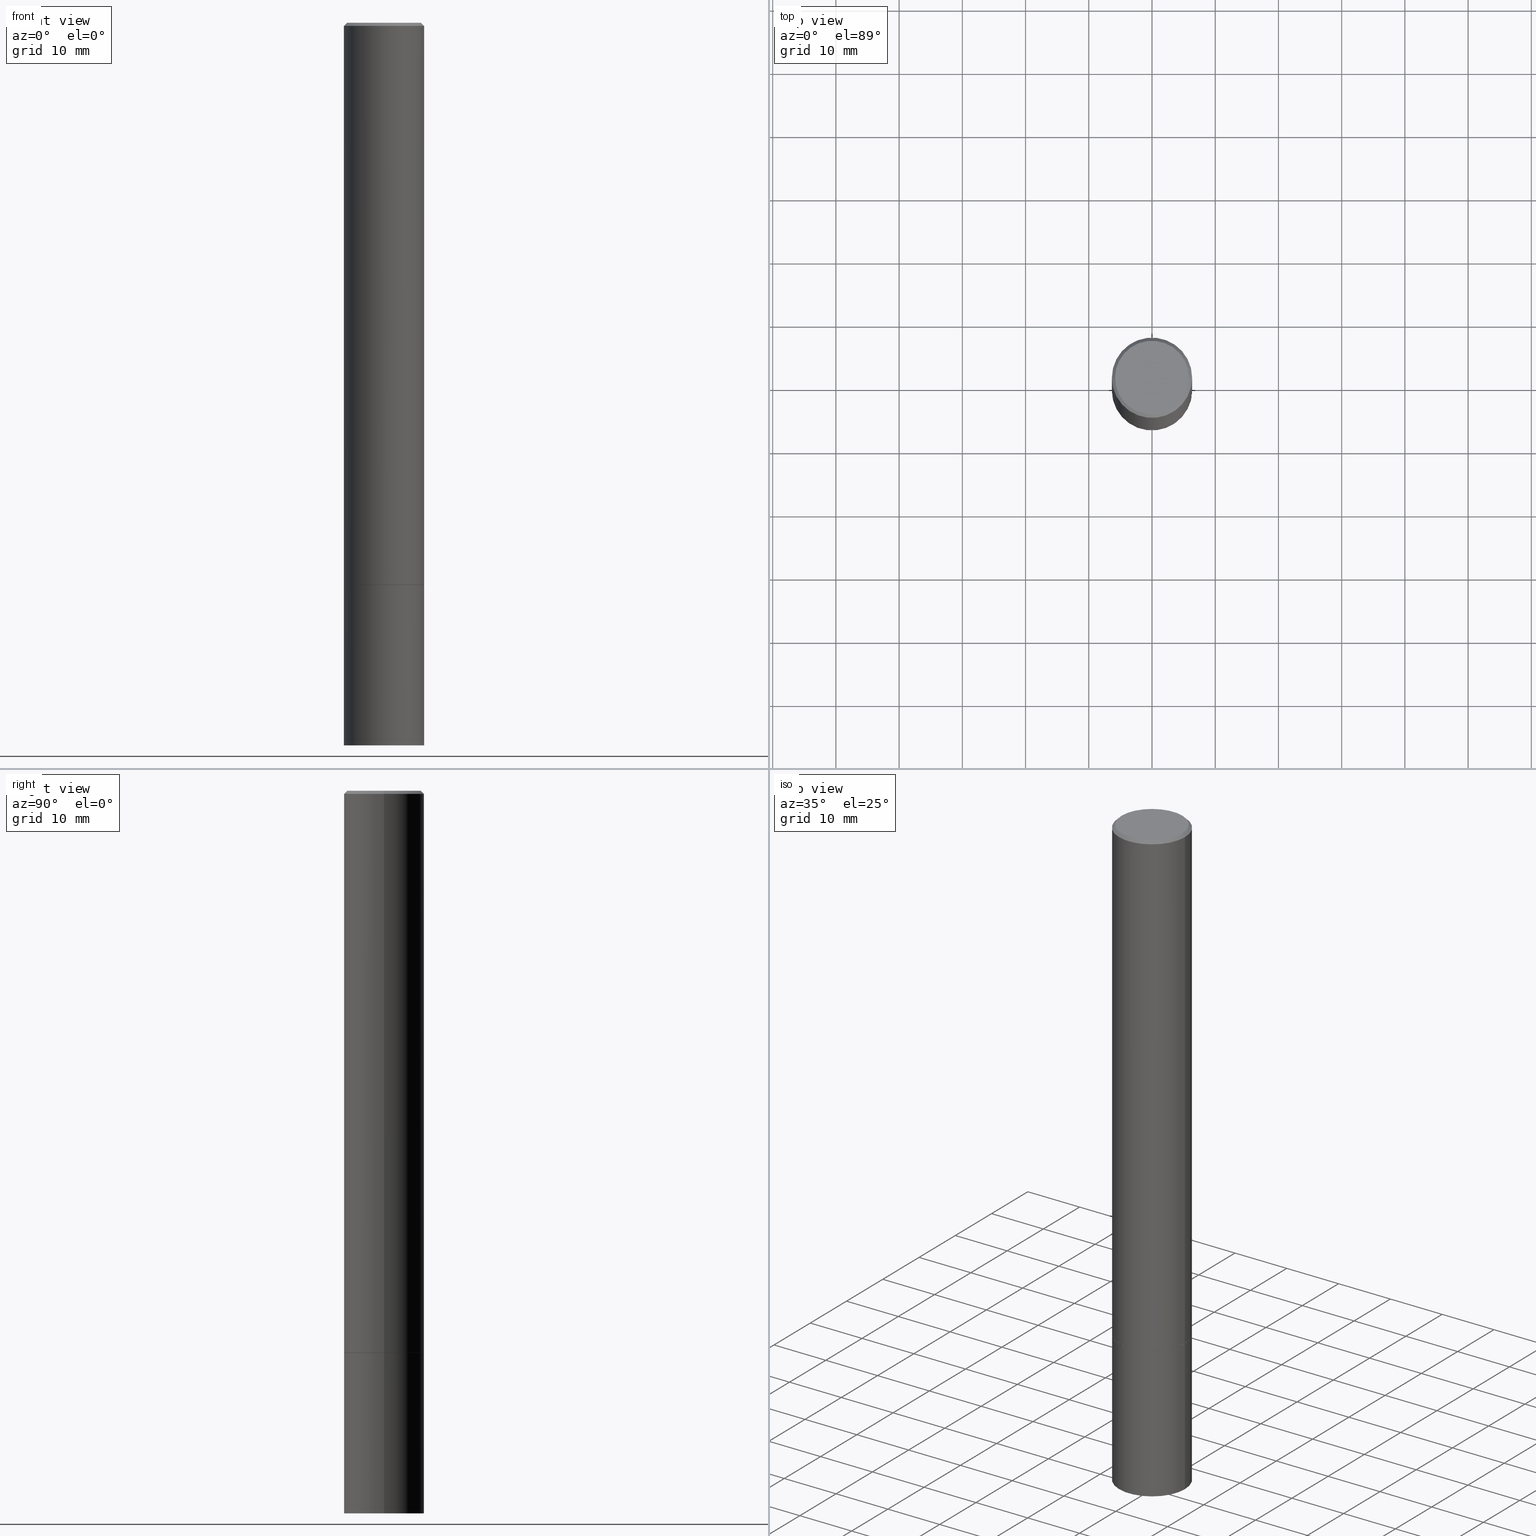
[diagram: canonical four-view strip — front | top / right | iso, engineering-drawing reading convention]
A machine part, canonical four-view strip (front | top / right | iso — engineering-drawing reading convention). The complete STEP part file that produces these views, byte-faithful:
ISO-10303-21;
HEADER;
FILE_DESCRIPTION (( 'STEP AP203' ),
    '1' );
FILE_NAME ('32265.STEP',
    '2024-02-27T14:52:53',
    ( '' ),
    ( '' ),
    'SwSTEP 2.0',
    'SolidWorks 2023',
    '' );
FILE_SCHEMA (( 'CONFIG_CONTROL_DESIGN' ));
ENDSEC;

DATA;
#1 = DIRECTION ( 'NONE',  ( 1.000000000000000000, -6.982962677686262766E-15, 0.000000000000000000 ) ) ;
#2 = VECTOR ( 'NONE', #349, 39.37007874015748143 ) ;
#3 = PRODUCT_DEFINITION ( 'UNKNOWN', '', #80, #163 ) ;
#4 = CARTESIAN_POINT ( 'NONE',  ( -0.2500000000000000555, -4.366904576294259619E-15, -3.499000000000000554 ) ) ;
#5 = EDGE_LOOP ( 'NONE', ( #111, #302, #224, #300 ) ) ;
#6 = DIRECTION ( 'NONE',  ( 1.000000000000000000, -6.982962677686262766E-15, 0.000000000000000000 ) ) ;
#7 = CYLINDRICAL_SURFACE ( 'NONE', #318, 0.2499999999999998057 ) ;
#8 = FACE_OUTER_BOUND ( 'NONE', #5, .T. ) ;
#9 = DIRECTION ( 'NONE',  ( 1.000000000000000000, -6.982962677686270655E-15, 0.000000000000000000 ) ) ;
#10 = PERSON_AND_ORGANIZATION ( #312, #361 ) ;
#11 = CC_DESIGN_APPROVAL ( #19, ( #80 ) ) ;
#12 = COORDINATED_UNIVERSAL_TIME_OFFSET ( 5, 0, .BEHIND. ) ;
#13 = EDGE_CURVE ( 'NONE', #35, #161, #264, .T. ) ;
#14 = DIRECTION ( 'NONE',  ( 1.000000000000000000, 0.000000000000000000, 0.000000000000000000 ) ) ;
#15 = CYLINDRICAL_SURFACE ( 'NONE', #129, 0.2500000000000000000 ) ;
#16 = PERSON_AND_ORGANIZATION_ROLE ( 'creator' ) ;
#17 = CARTESIAN_POINT ( 'NONE',  ( 1.745740669421676527E-15, 0.2499999999999842903, -4.500000000000000888 ) ) ;
#18 = APPLICATION_PROTOCOL_DEFINITION ( 'international standard', 'config_control_design', 1994, #199 ) ;
#19 = APPROVAL ( #240, 'UNSPECIFIED' ) ;
#20 = VECTOR ( 'NONE', #50, 39.37007874015748143 ) ;
#21 = CARTESIAN_POINT ( 'NONE',  ( 8.559140821647978089E-29, -1.222018468595101092E-14, -3.500000000000000444 ) ) ;
#22 = DIRECTION ( 'NONE',  ( 2.438088387897960049E-29, -3.491481338843145188E-15, -1.000000000000000000 ) ) ;
#23 = ORIENTED_EDGE ( 'NONE', *, *, #193, .T. ) ;
#24 = CARTESIAN_POINT ( 'NONE',  ( 8.559140821647978089E-29, -1.222018468595101092E-14, -3.500000000000000444 ) ) ;
#25 = VERTEX_POINT ( 'NONE', #100 ) ;
#26 = CIRCLE ( 'NONE', #276, 0.2489999999999999991 ) ;
#27 = AXIS2_PLACEMENT_3D ( 'NONE', #108, #329, #110 ) ;
#28 = EDGE_CURVE ( 'NONE', #271, #192, #352, .T. ) ;
#29 = CARTESIAN_POINT ( 'NONE',  ( -0.2299999999999995381, 1.640996229256269364E-15, 4.268512490089056766E-18 ) ) ;
#30 = EDGE_LOOP ( 'NONE', ( #173, #335, #249, #365 ) ) ;
#31 = DIRECTION ( 'NONE',  ( -2.445468806185136597E-29, 3.491481338843145583E-15, 1.000000000000000000 ) ) ;
#32 = CC_DESIGN_APPROVAL ( #210, ( #3 ) ) ;
#33 = DIRECTION ( 'NONE',  ( -1.000000000000000000, 6.982962677686265922E-15, -4.876176775795935793E-29 ) ) ;
#34 = VECTOR ( 'NONE', #157, 39.37007874015748143 ) ;
#35 = VERTEX_POINT ( 'NONE', #123 ) ;
#36 = PERSON_AND_ORGANIZATION ( #312, #361 ) ;
#37 = PERSON_AND_ORGANIZATION ( #312, #361 ) ;
#38 = AXIS2_PLACEMENT_3D ( 'NONE', #105, #22, #270 ) ;
#39 = CIRCLE ( 'NONE', #285, 0.2500000000000000000 ) ;
#40 = COORDINATED_UNIVERSAL_TIME_OFFSET ( 5, 0, .BEHIND. ) ;
#41 = CARTESIAN_POINT ( 'NONE',  ( 0.2489999999999999991, -1.395894239269489158E-14, -3.500000000000000444 ) ) ;
#42 = ORIENTED_EDGE ( 'NONE', *, *, #172, .F. ) ;
#43 = PERSON_AND_ORGANIZATION ( #312, #361 ) ;
#44 = DIRECTION ( 'NONE',  ( 1.000000000000000000, -6.982962677686266711E-15, 4.876225828469318410E-29 ) ) ;
#45 = AXIS2_PLACEMENT_3D ( 'NONE', #291, #208, #322 ) ;
#46 = CIRCLE ( 'NONE', #354, 0.2499999999999995837 ) ;
#47 = EDGE_LOOP ( 'NONE', ( #67, #363 ) ) ;
#48 = CARTESIAN_POINT ( 'NONE',  ( -1.043851414335219820E-46, 1.490343170380447200E-32, 4.268512490100411279E-18 ) ) ;
#49 = ORIENTED_EDGE ( 'NONE', *, *, #226, .T. ) ;
#50 = DIRECTION ( 'NONE',  ( 0.7071067811866199593, -2.468850131083015945E-15, 0.7071067811864750752 ) ) ;
#51 = CARTESIAN_POINT ( 'NONE',  ( 0.2500000000000000000, -1.745740669421566678E-15, 1.219044193948983948E-29 ) ) ;
#52 = LINE ( 'NONE', #241, #97 ) ;
#53 = ORIENTED_EDGE ( 'NONE', *, *, #158, .F. ) ;
#54 = AXIS2_PLACEMENT_3D ( 'NONE', #168, #140, #343 ) ;
#55 = CARTESIAN_POINT ( 'NONE',  ( 8.556695352841794728E-29, -1.221669320461216791E-14, -3.499000000000000554 ) ) ;
#56 = EDGE_LOOP ( 'NONE', ( #159, #86, #251, #232 ) ) ;
#57 = VERTEX_POINT ( 'NONE', #347 ) ;
#58 = DIRECTION ( 'NONE',  ( 1.000000000000000000, -6.982962677686270655E-15, 0.000000000000000000 ) ) ;
#59 = AXIS2_PLACEMENT_3D ( 'NONE', #48, #297, #188 ) ;
#60 = EDGE_LOOP ( 'NONE', ( #332, #167, #49, #279 ) ) ;
#61 = ADVANCED_FACE ( 'NONE', ( #321 ), #284, .T. ) ;
#62 = CARTESIAN_POINT ( 'NONE',  ( 0.2499999999999998057, -1.745740669421565297E-15, 1.219044193948982967E-29 ) ) ;
#63 = MANIFOLD_SOLID_BREP ( 'Body-Move/Copy2[2]', #314 ) ;
#64 = DIRECTION ( 'NONE',  ( 2.445468806185136597E-29, -3.491481338843145583E-15, -1.000000000000000000 ) ) ;
#65 = DIRECTION ( 'NONE',  ( -2.445468806185136597E-29, 3.491481338843145583E-15, 1.000000000000000000 ) ) ;
#66 = CONICAL_SURFACE ( 'NONE', #54, 0.2489999999999999991, 0.7853981633975507526 ) ;
#67 = ORIENTED_EDGE ( 'NONE', *, *, #315, .T. ) ;
#68 = PERSON_AND_ORGANIZATION_ROLE ( 'classification_officer' ) ;
#69 = DIRECTION ( 'NONE',  ( 1.000000000000000000, -6.982962677686270655E-15, 0.000000000000000000 ) ) ;
#70 = ADVANCED_FACE ( 'NONE', ( #183 ), #15, .T. ) ;
#71 = CARTESIAN_POINT ( 'NONE',  ( -0.2500000000000000000, 1.776356839400250465E-15, -1.229733772563726445E-29 ) ) ;
#72 = CALENDAR_DATE ( 2024, 27, 2 ) ;
#73 = DIRECTION ( 'NONE',  ( -2.445468806185136877E-29, 3.491481338843145188E-15, 1.000000000000000000 ) ) ;
#74 = MANIFOLD_SOLID_BREP ( 'Body-Move/Copy2[1]', #306 ) ;
#75 = APPLICATION_CONTEXT ( 'configuration controlled 3d designs of mechanical parts and assemblies' ) ;
#76 = ORIENTED_EDGE ( 'NONE', *, *, #315, .F. ) ;
#77 = APPROVAL_DATE_TIME ( #155, #117 ) ;
#78 = DIRECTION ( 'NONE',  ( -2.445468806185136877E-29, 3.491481338843145188E-15, 1.000000000000000000 ) ) ;
#79 = DIRECTION ( 'NONE',  ( -0.7071067811866199593, 7.493145998870616062E-15, 0.7071067811864750752 ) ) ;
#80 = PRODUCT_DEFINITION_FORMATION_WITH_SPECIFIED_SOURCE ( 'ANY', '', #280, .NOT_KNOWN. ) ;
#81 = LINE ( 'NONE', #41, #20 ) ;
#82 = ADVANCED_FACE ( 'NONE', ( #243 ), #245, .T. ) ;
#83 = VERTEX_POINT ( 'NONE', #154 ) ;
#84 = FACE_OUTER_BOUND ( 'NONE', #178, .T. ) ;
#85 = LINE ( 'NONE', #364, #341 ) ;
#86 = ORIENTED_EDGE ( 'NONE', *, *, #236, .T. ) ;
#87 = AXIS2_PLACEMENT_3D ( 'NONE', #21, #31, #6 ) ;
#88 = CC_DESIGN_DATE_AND_TIME_ASSIGNMENT ( #124, #233, ( #3 ) ) ;
#89 = AXIS2_PLACEMENT_3D ( 'NONE', #215, #195, #303 ) ;
#90 = SECURITY_CLASSIFICATION ( '', '', #353 ) ;
#91 = ORIENTED_EDGE ( 'NONE', *, *, #307, .T. ) ;
#92 = ADVANCED_FACE ( 'NONE', ( #84 ), #160, .F. ) ;
#93 = FACE_OUTER_BOUND ( 'NONE', #56, .T. ) ;
#94 = ADVANCED_BREP_SHAPE_REPRESENTATION ( '32265', ( #74, #63, #342 ), #150 ) ;
#95 = CARTESIAN_POINT ( 'NONE',  ( 4.890937612370290675E-31, -6.982962677686316261E-17, -0.02000000000000007327 ) ) ;
#96 = ADVANCED_FACE ( 'NONE', ( #274 ), #333, .F. ) ;
#97 = VECTOR ( 'NONE', #358, 39.37007874015748143 ) ;
#98 = APPROVAL_ROLE ( '' ) ;
#99 = LINE ( 'NONE', #62, #156 ) ;
#100 = CARTESIAN_POINT ( 'NONE',  ( 0.2489999999999999991, -1.395894239269489158E-14, -3.500000000000000444 ) ) ;
#101 = COORDINATED_UNIVERSAL_TIME_OFFSET ( 5, 0, .BEHIND. ) ;
#102 = ORIENTED_EDGE ( 'NONE', *, *, #134, .T. ) ;
#103 = CONICAL_SURFACE ( 'NONE', #346, 0.2499999999999995837, 0.7853981633974479459 ) ;
#104 = PERSON_AND_ORGANIZATION_ROLE ( 'creator' ) ;
#105 = CARTESIAN_POINT ( 'NONE',  ( 1.606081415867837912E-15, 0.2299999999999995381, -8.009064516888716022E-16 ) ) ;
#106 = CALENDAR_DATE ( 2024, 27, 2 ) ;
#107 = ORIENTED_EDGE ( 'NONE', *, *, #186, .F. ) ;
#108 = CARTESIAN_POINT ( 'NONE',  ( 4.890937612370290675E-31, -6.982962677686316261E-17, -0.02000000000000007327 ) ) ;
#109 = EDGE_LOOP ( 'NONE', ( #91, #275, #76, #42 ) ) ;
#110 = DIRECTION ( 'NONE',  ( 1.000000000000000000, -6.982962677686266711E-15, 0.000000000000000000 ) ) ;
#111 = ORIENTED_EDGE ( 'NONE', *, *, #344, .T. ) ;
#112 = CARTESIAN_POINT ( 'NONE',  ( 1.100460962783311469E-28, -1.571166602479415690E-14, -4.500000000000000000 ) ) ;
#113 = CARTESIAN_POINT ( 'NONE',  ( -0.2499999999999998057, 1.776356839400249084E-15, -1.229733772563725465E-29 ) ) ;
#114 = DIRECTION ( 'NONE',  ( 1.000000000000000000, -6.982962677686265922E-15, 4.876176775795935793E-29 ) ) ;
#115 = VERTEX_POINT ( 'NONE', #29 ) ;
#116 = VECTOR ( 'NONE', #213, 39.37007874015748143 ) ;
#117 = APPROVAL ( #149, 'UNSPECIFIED' ) ;
#118 = AXIS2_PLACEMENT_3D ( 'NONE', #207, #147, #9 ) ;
#119 = AXIS2_PLACEMENT_3D ( 'NONE', #24, #299, #219 ) ;
#120 = PLANE ( 'NONE',  #237 ) ;
#121 = DIRECTION ( 'NONE',  ( -2.445468806185136597E-29, 3.491481338843145583E-15, 1.000000000000000000 ) ) ;
#122 = CARTESIAN_POINT ( 'NONE',  ( 0.000000000000000000, 0.000000000000000000, 0.000000000000000000 ) ) ;
#123 = CARTESIAN_POINT ( 'NONE',  ( -0.2500000000000000000, -1.218956851597233187E-14, -4.500000000000000000 ) ) ;
#124 = DATE_AND_TIME ( #72, #164 ) ;
#125 = LOCAL_TIME ( 9, 52, 53.00000000000000000, #40 ) ;
#126 = COORDINATED_UNIVERSAL_TIME_OFFSET ( 5, 0, .BEHIND. ) ;
#127 = ORIENTED_EDGE ( 'NONE', *, *, #206, .F. ) ;
#128 = EDGE_CURVE ( 'NONE', #255, #25, #26, .T. ) ;
#129 = AXIS2_PLACEMENT_3D ( 'NONE', #131, #137, #309 ) ;
#130 = AXIS2_PLACEMENT_3D ( 'NONE', #203, #316, #257 ) ;
#131 = CARTESIAN_POINT ( 'NONE',  ( 0.000000000000000000, 0.000000000000000000, 0.000000000000000000 ) ) ;
#132 = CARTESIAN_POINT ( 'NONE',  ( 0.2500000000000000000, -1.745740669421572357E-14, -4.500000000000000000 ) ) ;
#133 = EDGE_LOOP ( 'NONE', ( #53, #190, #242, #304 ) ) ;
#134 = EDGE_CURVE ( 'NONE', #83, #115, #292, .T. ) ;
#135 = LINE ( 'NONE', #359, #34 ) ;
#136 = ORIENTED_EDGE ( 'NONE', *, *, #144, .T. ) ;
#137 = DIRECTION ( 'NONE',  ( -2.445468806185136597E-29, 3.491481338843145583E-15, 1.000000000000000000 ) ) ;
#138 = AXIS2_PLACEMENT_3D ( 'NONE', #214, #239, #44 ) ;
#139 = CIRCLE ( 'NONE', #59, 0.2299999999999995381 ) ;
#140 = DIRECTION ( 'NONE',  ( -2.445468806185136597E-29, 3.491481338843145583E-15, 1.000000000000000000 ) ) ;
#141 = ORIENTED_EDGE ( 'NONE', *, *, #317, .T. ) ;
#142 = DIRECTION ( 'NONE',  ( -2.445468806185136597E-29, 3.491481338843145583E-15, 1.000000000000000000 ) ) ;
#143 = VECTOR ( 'NONE', #78, 39.37007874015748143 ) ;
#144 = EDGE_CURVE ( 'NONE', #255, #271, #85, .T. ) ;
#145 = CYLINDRICAL_SURFACE ( 'NONE', #130, 0.2499999999999998057 ) ;
#146 = CIRCLE ( 'NONE', #325, 0.2500000000000000000 ) ;
#147 = DIRECTION ( 'NONE',  ( -2.445468806185136597E-29, 3.491481338843145583E-15, 1.000000000000000000 ) ) ;
#148 = CALENDAR_DATE ( 2024, 27, 2 ) ;
#149 = APPROVAL_STATUS ( 'not_yet_approved' ) ;
#150 =( GEOMETRIC_REPRESENTATION_CONTEXT ( 3 ) GLOBAL_UNCERTAINTY_ASSIGNED_CONTEXT ( ( #272 ) ) GLOBAL_UNIT_ASSIGNED_CONTEXT ( ( #198, #319, #313 ) ) REPRESENTATION_CONTEXT ( 'NONE', 'WORKASPACE' ) );
#151 = ADVANCED_FACE ( 'NONE', ( #248 ), #362, .T. ) ;
#152 = VERTEX_POINT ( 'NONE', #189 ) ;
#153 = APPROVAL_DATE_TIME ( #320, #210 ) ;
#154 = CARTESIAN_POINT ( 'NONE',  ( 0.2299999999999995381, -1.681434332853596053E-15, 4.268512490111905999E-18 ) ) ;
#155 = DATE_AND_TIME ( #356, #225 ) ;
#156 = VECTOR ( 'NONE', #73, 39.37007874015748143 ) ;
#157 = DIRECTION ( 'NONE',  ( -0.7071067811865472397, 2.468850131082253905E-15, -0.7071067811865477948 ) ) ;
#158 = EDGE_CURVE ( 'NONE', #271, #165, #331, .T. ) ;
#159 = ORIENTED_EDGE ( 'NONE', *, *, #13, .F. ) ;
#160 = PLANE ( 'NONE',  #38 ) ;
#161 = VERTEX_POINT ( 'NONE', #162 ) ;
#162 = CARTESIAN_POINT ( 'NONE',  ( -0.2500000000000000000, -1.218956851597233187E-14, -3.500000000000000444 ) ) ;
#163 = DESIGN_CONTEXT ( 'detailed design', #199, 'design' ) ;
#164 = LOCAL_TIME ( 9, 52, 53.00000000000000000, #185 ) ;
#165 = VERTEX_POINT ( 'NONE', #187 ) ;
#166 = CC_DESIGN_PERSON_AND_ORGANIZATION_ASSIGNMENT ( #234, #68, ( #90 ) ) ;
#167 = ORIENTED_EDGE ( 'NONE', *, *, #206, .T. ) ;
#168 = CARTESIAN_POINT ( 'NONE',  ( 8.559140821647978089E-29, -1.222018468595101092E-14, -3.500000000000000444 ) ) ;
#169 = VERTEX_POINT ( 'NONE', #132 ) ;
#170 = LOCAL_TIME ( 9, 52, 53.00000000000000000, #101 ) ;
#171 = CARTESIAN_POINT ( 'NONE',  ( 1.745740669421652072E-15, 0.2499999999999877598, -3.500000000000001332 ) ) ;
#172 = EDGE_CURVE ( 'NONE', #169, #57, #334, .T. ) ;
#173 = ORIENTED_EDGE ( 'NONE', *, *, #144, .F. ) ;
#174 = CARTESIAN_POINT ( 'NONE',  ( 8.559140821647978089E-29, -1.222018468595101092E-14, -3.500000000000000444 ) ) ;
#175 = APPROVAL_DATE_TIME ( #326, #19 ) ;
#176 = CARTESIAN_POINT ( 'NONE',  ( 0.000000000000000000, 0.000000000000000000, 0.000000000000000000 ) ) ;
#177 = DATE_TIME_ROLE ( 'classification_date' ) ;
#178 = EDGE_LOOP ( 'NONE', ( #23, #102 ) ) ;
#179 = CC_DESIGN_DATE_AND_TIME_ASSIGNMENT ( #290, #177, ( #90 ) ) ;
#180 = AXIS2_PLACEMENT_3D ( 'NONE', #17, #355, #268 ) ;
#181 = APPROVAL_PERSON_ORGANIZATION ( #10, #117, #230 ) ;
#182 = CC_DESIGN_SECURITY_CLASSIFICATION ( #90, ( #80 ) ) ;
#183 = FACE_OUTER_BOUND ( 'NONE', #109, .T. ) ;
#184 = DIRECTION ( 'NONE',  ( -2.445468806185136597E-29, 3.491481338843145583E-15, 1.000000000000000000 ) ) ;
#185 = COORDINATED_UNIVERSAL_TIME_OFFSET ( 5, 0, .BEHIND. ) ;
#186 = EDGE_CURVE ( 'NONE', #25, #255, #267, .T. ) ;
#187 = CARTESIAN_POINT ( 'NONE',  ( -0.2499999999999995837, 1.675911042644700618E-15, -0.02000000000000007327 ) ) ;
#188 = DIRECTION ( 'NONE',  ( 1.000000000000000000, -6.982962677686266711E-15, 4.876225828469318410E-29 ) ) ;
#189 = CARTESIAN_POINT ( 'NONE',  ( 0.2499999999999995837, -1.784954126219743033E-15, -0.02000000000000007327 ) ) ;
#190 = ORIENTED_EDGE ( 'NONE', *, *, #28, .T. ) ;
#191 = DIRECTION ( 'NONE',  ( 1.000000000000000000, -6.982962677686266711E-15, 0.000000000000000000 ) ) ;
#192 = VERTEX_POINT ( 'NONE', #301 ) ;
#193 = EDGE_CURVE ( 'NONE', #115, #83, #139, .T. ) ;
#194 = DIRECTION ( 'NONE',  ( -2.445468806185136597E-29, 3.491481338843145583E-15, 1.000000000000000000 ) ) ;
#195 = DIRECTION ( 'NONE',  ( 2.445468806185136597E-29, -3.491481338843145583E-15, -1.000000000000000000 ) ) ;
#196 = EDGE_LOOP ( 'NONE', ( #107, #220 ) ) ;
#197 = DIRECTION ( 'NONE',  ( 1.000000000000000000, -6.982962677686266711E-15, 0.000000000000000000 ) ) ;
#198 =( CONVERSION_BASED_UNIT ( 'INCH', #286 ) LENGTH_UNIT ( ) NAMED_UNIT ( #296 ) );
#199 = APPLICATION_CONTEXT ( 'configuration controlled 3d designs of mechanical parts and assemblies' ) ;
#200 = APPROVAL_PERSON_ORGANIZATION ( #43, #210, #204 ) ;
#201 = EDGE_CURVE ( 'NONE', #115, #165, #135, .T. ) ;
#202 = DIRECTION ( 'NONE',  ( 1.000000000000000000, -6.982962677686266711E-15, 4.876176775795935793E-29 ) ) ;
#203 = CARTESIAN_POINT ( 'NONE',  ( 0.000000000000000000, 0.000000000000000000, 0.000000000000000000 ) ) ;
#204 = APPROVAL_ROLE ( '' ) ;
#205 = CYLINDRICAL_SURFACE ( 'NONE', #258, 0.2500000000000000000 ) ;
#206 = EDGE_CURVE ( 'NONE', #83, #152, #52, .T. ) ;
#207 = CARTESIAN_POINT ( 'NONE',  ( 8.556695352841794728E-29, -1.221669320461216791E-14, -3.499000000000000554 ) ) ;
#208 = DIRECTION ( 'NONE',  ( -2.445468806185136597E-29, 3.491481338843145583E-15, 1.000000000000000000 ) ) ;
#209 = CC_DESIGN_APPROVAL ( #117, ( #90 ) ) ;
#210 = APPROVAL ( #323, 'UNSPECIFIED' ) ;
#211 = DIRECTION ( 'NONE',  ( -2.445468806185136597E-29, 3.491481338843145583E-15, 1.000000000000000000 ) ) ;
#212 = PERSON_AND_ORGANIZATION ( #312, #361 ) ;
#213 = DIRECTION ( 'NONE',  ( -2.445468806185136877E-29, 3.491481338843145188E-15, 1.000000000000000000 ) ) ;
#214 = CARTESIAN_POINT ( 'NONE',  ( -1.043851414335219820E-46, 1.490343170380447200E-32, 4.268512490100411279E-18 ) ) ;
#215 = CARTESIAN_POINT ( 'NONE',  ( 4.890937612370290675E-31, -6.982962677686316261E-17, -0.02000000000000007327 ) ) ;
#216 = CC_DESIGN_PERSON_AND_ORGANIZATION_ASSIGNMENT ( #212, #288, ( #80 ) ) ;
#217 = EDGE_LOOP ( 'NONE', ( #330, #253 ) ) ;
#218 = FACE_OUTER_BOUND ( 'NONE', #133, .T. ) ;
#219 = DIRECTION ( 'NONE',  ( 1.000000000000000000, -6.982962677686266711E-15, 0.000000000000000000 ) ) ;
#220 = ORIENTED_EDGE ( 'NONE', *, *, #128, .F. ) ;
#221 = AXIS2_PLACEMENT_3D ( 'NONE', #55, #228, #58 ) ;
#222 = CARTESIAN_POINT ( 'NONE',  ( 4.890937612370290675E-31, -6.982962677686316261E-17, -0.02000000000000007327 ) ) ;
#223 = CC_DESIGN_PERSON_AND_ORGANIZATION_ASSIGNMENT ( #262, #16, ( #3 ) ) ;
#224 = ORIENTED_EDGE ( 'NONE', *, *, #226, .F. ) ;
#225 = LOCAL_TIME ( 9, 52, 53.00000000000000000, #12 ) ;
#226 = EDGE_CURVE ( 'NONE', #152, #165, #308, .T. ) ;
#227 = DIRECTION ( 'NONE',  ( 1.000000000000000000, -6.982962677686266711E-15, 4.876176775795935793E-29 ) ) ;
#228 = DIRECTION ( 'NONE',  ( -2.445468806185136597E-29, 3.491481338843145583E-15, 1.000000000000000000 ) ) ;
#229 = CARTESIAN_POINT ( 'NONE',  ( 1.100460962783311469E-28, -1.571166602479415690E-14, -4.500000000000000000 ) ) ;
#230 = APPROVAL_ROLE ( '' ) ;
#231 = EDGE_CURVE ( 'NONE', #25, #192, #81, .T. ) ;
#232 = ORIENTED_EDGE ( 'NONE', *, *, #340, .F. ) ;
#233 = DATE_TIME_ROLE ( 'creation_date' ) ;
#234 = PERSON_AND_ORGANIZATION ( #312, #361 ) ;
#235 = PERSON_AND_ORGANIZATION ( #312, #361 ) ;
#236 = EDGE_CURVE ( 'NONE', #35, #169, #277, .T. ) ;
#237 = AXIS2_PLACEMENT_3D ( 'NONE', #171, #283, #33 ) ;
#238 = CARTESIAN_POINT ( 'NONE',  ( -0.2489999999999999991, -1.044563481956013985E-14, -3.500000000000000444 ) ) ;
#239 = DIRECTION ( 'NONE',  ( -2.445468806185136597E-29, 3.491481338843145583E-15, 1.000000000000000000 ) ) ;
#240 = APPROVAL_STATUS ( 'not_yet_approved' ) ;
#241 = CARTESIAN_POINT ( 'NONE',  ( 0.2499999999999995837, -1.784954126219743033E-15, -0.02000000000000007327 ) ) ;
#242 = ORIENTED_EDGE ( 'NONE', *, *, #256, .T. ) ;
#243 = FACE_OUTER_BOUND ( 'NONE', #60, .T. ) ;
#244 = ORIENTED_EDGE ( 'NONE', *, *, #186, .T. ) ;
#245 = CONICAL_SURFACE ( 'NONE', #89, 0.2499999999999995837, 0.7853981633974479459 ) ;
#246 = CC_DESIGN_PERSON_AND_ORGANIZATION_ASSIGNMENT ( #37, #260, ( #280 ) ) ;
#247 = CIRCLE ( 'NONE', #221, 0.2500000000000000000 ) ;
#248 = FACE_OUTER_BOUND ( 'NONE', #217, .T. ) ;
#249 = ORIENTED_EDGE ( 'NONE', *, *, #231, .T. ) ;
#250 = CARTESIAN_POINT ( 'NONE',  ( 8.559140821647978089E-29, -1.222018468595101092E-14, -3.500000000000000444 ) ) ;
#251 = ORIENTED_EDGE ( 'NONE', *, *, #172, .T. ) ;
#252 =( LENGTH_UNIT ( ) NAMED_UNIT ( * ) SI_UNIT ( $, .METRE. ) );
#253 = ORIENTED_EDGE ( 'NONE', *, *, #236, .F. ) ;
#254 = DIRECTION ( 'NONE',  ( -1.000000000000000000, 6.982962677686266711E-15, 0.000000000000000000 ) ) ;
#255 = VERTEX_POINT ( 'NONE', #238 ) ;
#256 = EDGE_CURVE ( 'NONE', #192, #152, #99, .T. ) ;
#257 = DIRECTION ( 'NONE',  ( 1.000000000000000000, -6.982962677686266711E-15, 4.876176775795935793E-29 ) ) ;
#258 = AXIS2_PLACEMENT_3D ( 'NONE', #176, #65, #202 ) ;
#259 = ORIENTED_EDGE ( 'NONE', *, *, #344, .F. ) ;
#260 = PERSON_AND_ORGANIZATION_ROLE ( 'design_owner' ) ;
#261 = FACE_OUTER_BOUND ( 'NONE', #47, .T. ) ;
#262 = PERSON_AND_ORGANIZATION ( #312, #361 ) ;
#263 = CC_DESIGN_PERSON_AND_ORGANIZATION_ASSIGNMENT ( #235, #104, ( #80 ) ) ;
#264 = LINE ( 'NONE', #71, #2 ) ;
#265 = DIRECTION ( 'NONE',  ( 0.000000000000000000, 0.000000000000000000, 1.000000000000000000 ) ) ;
#266 = CARTESIAN_POINT ( 'NONE',  ( 8.559140821647978089E-29, -1.222018468595101092E-14, -3.500000000000000444 ) ) ;
#267 = CIRCLE ( 'NONE', #119, 0.2489999999999999991 ) ;
#268 = DIRECTION ( 'NONE',  ( -1.000000000000000000, 6.982962677686265922E-15, -4.876176775795935793E-29 ) ) ;
#269 = EDGE_LOOP ( 'NONE', ( #244, #136, #259, #310 ) ) ;
#270 = DIRECTION ( 'NONE',  ( -1.000000000000000000, 6.982962677686265922E-15, -4.876176775795935793E-29 ) ) ;
#271 = VERTEX_POINT ( 'NONE', #4 ) ;
#272 = UNCERTAINTY_MEASURE_WITH_UNIT (LENGTH_MEASURE( 1.000000000000000082E-05 ), #198, 'distance_accuracy_value', 'NONE');
#273 = ADVANCED_FACE ( 'NONE', ( #261 ), #120, .F. ) ;
#274 = FACE_OUTER_BOUND ( 'NONE', #196, .T. ) ;
#275 = ORIENTED_EDGE ( 'NONE', *, *, #13, .T. ) ;
#276 = AXIS2_PLACEMENT_3D ( 'NONE', #266, #211, #191 ) ;
#277 = CIRCLE ( 'NONE', #298, 0.2500000000000000000 ) ;
#278 = DIRECTION ( 'NONE',  ( -2.438088387897960049E-29, 3.491481338843145188E-15, 1.000000000000000000 ) ) ;
#279 = ORIENTED_EDGE ( 'NONE', *, *, #201, .F. ) ;
#280 = PRODUCT ( '32265', '32265', '', ( #295 ) ) ;
#281 = APPROVAL_PERSON_ORGANIZATION ( #36, #19, #98 ) ;
#282 = ADVANCED_FACE ( 'NONE', ( #8 ), #7, .T. ) ;
#283 = DIRECTION ( 'NONE',  ( 2.438088387897960049E-29, -3.491481338843145188E-15, -1.000000000000000000 ) ) ;
#284 = CONICAL_SURFACE ( 'NONE', #45, 0.2489999999999999991, 0.7853981633975507526 ) ;
#285 = AXIS2_PLACEMENT_3D ( 'NONE', #229, #345, #69 ) ;
#286 = LENGTH_MEASURE_WITH_UNIT ( LENGTH_MEASURE( 0.02539999999999999897 ), #252 );
#287 = ADVANCED_FACE ( 'NONE', ( #93 ), #205, .T. ) ;
#288 = PERSON_AND_ORGANIZATION_ROLE ( 'design_supplier' ) ;
#289 = ORIENTED_EDGE ( 'NONE', *, *, #193, .F. ) ;
#290 = DATE_AND_TIME ( #148, #293 ) ;
#291 = CARTESIAN_POINT ( 'NONE',  ( 8.559140821647978089E-29, -1.222018468595101092E-14, -3.500000000000000444 ) ) ;
#292 = CIRCLE ( 'NONE', #138, 0.2299999999999995381 ) ;
#293 = LOCAL_TIME ( 9, 52, 53.00000000000000000, #126 ) ;
#294 = DIRECTION ( 'NONE',  ( 1.000000000000000000, -6.982962677686270655E-15, 0.000000000000000000 ) ) ;
#295 = MECHANICAL_CONTEXT ( 'NONE', #75, 'mechanical' ) ;
#296 = DIMENSIONAL_EXPONENTS ( 1.000000000000000000, 0.000000000000000000, 0.000000000000000000, 0.000000000000000000, 0.000000000000000000, 0.000000000000000000, 0.000000000000000000 ) ;
#297 = DIRECTION ( 'NONE',  ( -2.445468806185136597E-29, 3.491481338843145583E-15, 1.000000000000000000 ) ) ;
#298 = AXIS2_PLACEMENT_3D ( 'NONE', #112, #184, #294 ) ;
#299 = DIRECTION ( 'NONE',  ( -2.445468806185136597E-29, 3.491481338843145583E-15, 1.000000000000000000 ) ) ;
#300 = ORIENTED_EDGE ( 'NONE', *, *, #256, .F. ) ;
#301 = CARTESIAN_POINT ( 'NONE',  ( 0.2500000000000000000, -1.396243387403373617E-14, -3.499000000000000554 ) ) ;
#302 = ORIENTED_EDGE ( 'NONE', *, *, #158, .T. ) ;
#303 = DIRECTION ( 'NONE',  ( -1.000000000000000000, 6.982962677686266711E-15, 0.000000000000000000 ) ) ;
#304 = ORIENTED_EDGE ( 'NONE', *, *, #317, .F. ) ;
#305 = FACE_OUTER_BOUND ( 'NONE', #327, .T. ) ;
#306 = CLOSED_SHELL ( 'NONE', ( #70, #151, #273, #287 ) ) ;
#307 = EDGE_CURVE ( 'NONE', #169, #35, #39, .T. ) ;
#308 = CIRCLE ( 'NONE', #27, 0.2499999999999995837 ) ;
#309 = DIRECTION ( 'NONE',  ( 1.000000000000000000, -6.982962677686266711E-15, 4.876176775795935793E-29 ) ) ;
#310 = ORIENTED_EDGE ( 'NONE', *, *, #231, .F. ) ;
#311 = PRODUCT_DEFINITION_SHAPE ( 'NONE', 'NONE',  #3 ) ;
#312 = PERSON ( 'UNSPECIFIED', 'UNSPECIFIED', 'UNSPECIFIED', ('UNSPECIFIED'), ('UNSPECIFIED'), ('UNSPECIFIED') ) ;
#313 =( NAMED_UNIT ( * ) SI_UNIT ( $, .STERADIAN. ) SOLID_ANGLE_UNIT ( ) );
#314 = CLOSED_SHELL ( 'NONE', ( #61, #282, #82, #324, #351, #357, #96, #92 ) ) ;
#315 = EDGE_CURVE ( 'NONE', #57, #161, #338, .T. ) ;
#316 = DIRECTION ( 'NONE',  ( -2.445468806185136597E-29, 3.491481338843145583E-15, 1.000000000000000000 ) ) ;
#317 = EDGE_CURVE ( 'NONE', #165, #152, #46, .T. ) ;
#318 = AXIS2_PLACEMENT_3D ( 'NONE', #122, #121, #227 ) ;
#319 =( NAMED_UNIT ( * ) PLANE_ANGLE_UNIT ( ) SI_UNIT ( $, .RADIAN. ) );
#320 = DATE_AND_TIME ( #350, #125 ) ;
#321 = FACE_OUTER_BOUND ( 'NONE', #269, .T. ) ;
#322 = DIRECTION ( 'NONE',  ( 1.000000000000000000, -6.982962677686266711E-15, 0.000000000000000000 ) ) ;
#323 = APPROVAL_STATUS ( 'not_yet_approved' ) ;
#324 = ADVANCED_FACE ( 'NONE', ( #305 ), #103, .T. ) ;
#325 = AXIS2_PLACEMENT_3D ( 'NONE', #174, #142, #1 ) ;
#326 = DATE_AND_TIME ( #106, #170 ) ;
#327 = EDGE_LOOP ( 'NONE', ( #127, #289, #360, #141 ) ) ;
#328 = PRODUCT_RELATED_PRODUCT_CATEGORY ( 'detail', '', ( #280 ) ) ;
#329 = DIRECTION ( 'NONE',  ( -2.445468806185136597E-29, 3.491481338843145583E-15, 1.000000000000000000 ) ) ;
#330 = ORIENTED_EDGE ( 'NONE', *, *, #307, .F. ) ;
#331 = LINE ( 'NONE', #113, #143 ) ;
#332 = ORIENTED_EDGE ( 'NONE', *, *, #134, .F. ) ;
#333 = PLANE ( 'NONE',  #337 ) ;
#334 = LINE ( 'NONE', #51, #116 ) ;
#335 = ORIENTED_EDGE ( 'NONE', *, *, #128, .T. ) ;
#336 = CARTESIAN_POINT ( 'NONE',  ( 0.000000000000000000, 0.000000000000000000, 0.000000000000000000 ) ) ;
#337 = AXIS2_PLACEMENT_3D ( 'NONE', #250, #278, #114 ) ;
#338 = CIRCLE ( 'NONE', #87, 0.2500000000000000000 ) ;
#339 = FACE_OUTER_BOUND ( 'NONE', #30, .T. ) ;
#340 = EDGE_CURVE ( 'NONE', #161, #57, #146, .T. ) ;
#341 = VECTOR ( 'NONE', #79, 39.37007874015748143 ) ;
#342 = AXIS2_PLACEMENT_3D ( 'NONE', #336, #265, #14 ) ;
#343 = DIRECTION ( 'NONE',  ( 1.000000000000000000, -6.982962677686266711E-15, 0.000000000000000000 ) ) ;
#344 = EDGE_CURVE ( 'NONE', #192, #271, #247, .T. ) ;
#345 = DIRECTION ( 'NONE',  ( -2.445468806185136597E-29, 3.491481338843145583E-15, 1.000000000000000000 ) ) ;
#346 = AXIS2_PLACEMENT_3D ( 'NONE', #222, #64, #254 ) ;
#347 = CARTESIAN_POINT ( 'NONE',  ( 0.2500000000000000000, -1.396592535537257602E-14, -3.500000000000000444 ) ) ;
#348 = SHAPE_DEFINITION_REPRESENTATION ( #311, #94 ) ;
#349 = DIRECTION ( 'NONE',  ( -2.445468806185136877E-29, 3.491481338843145188E-15, 1.000000000000000000 ) ) ;
#350 = CALENDAR_DATE ( 2024, 27, 2 ) ;
#351 = ADVANCED_FACE ( 'NONE', ( #218 ), #145, .T. ) ;
#352 = CIRCLE ( 'NONE', #118, 0.2500000000000000000 ) ;
#353 = SECURITY_CLASSIFICATION_LEVEL ( 'unclassified' ) ;
#354 = AXIS2_PLACEMENT_3D ( 'NONE', #95, #194, #197 ) ;
#355 = DIRECTION ( 'NONE',  ( 2.438088387897960049E-29, -3.491481338843145188E-15, -1.000000000000000000 ) ) ;
#356 = CALENDAR_DATE ( 2024, 27, 2 ) ;
#357 = ADVANCED_FACE ( 'NONE', ( #339 ), #66, .T. ) ;
#358 = DIRECTION ( 'NONE',  ( 0.7071067811865472397, -7.319954787623254468E-15, -0.7071067811865477948 ) ) ;
#359 = CARTESIAN_POINT ( 'NONE',  ( -0.2499999999999995837, 1.675911042644700618E-15, -0.02000000000000007327 ) ) ;
#360 = ORIENTED_EDGE ( 'NONE', *, *, #201, .T. ) ;
#361 = ORGANIZATION ( 'UNSPECIFIED', 'UNSPECIFIED', '' ) ;
#362 = PLANE ( 'NONE',  #180 ) ;
#363 = ORIENTED_EDGE ( 'NONE', *, *, #340, .T. ) ;
#364 = CARTESIAN_POINT ( 'NONE',  ( -0.2489999999999999991, -1.045093327390836067E-14, -3.500000000000000444 ) ) ;
#365 = ORIENTED_EDGE ( 'NONE', *, *, #28, .F. ) ;
#366 = APPLICATION_PROTOCOL_DEFINITION ( 'international standard', 'config_control_design', 1994, #75 ) ;
ENDSEC;
END-ISO-10303-21;
